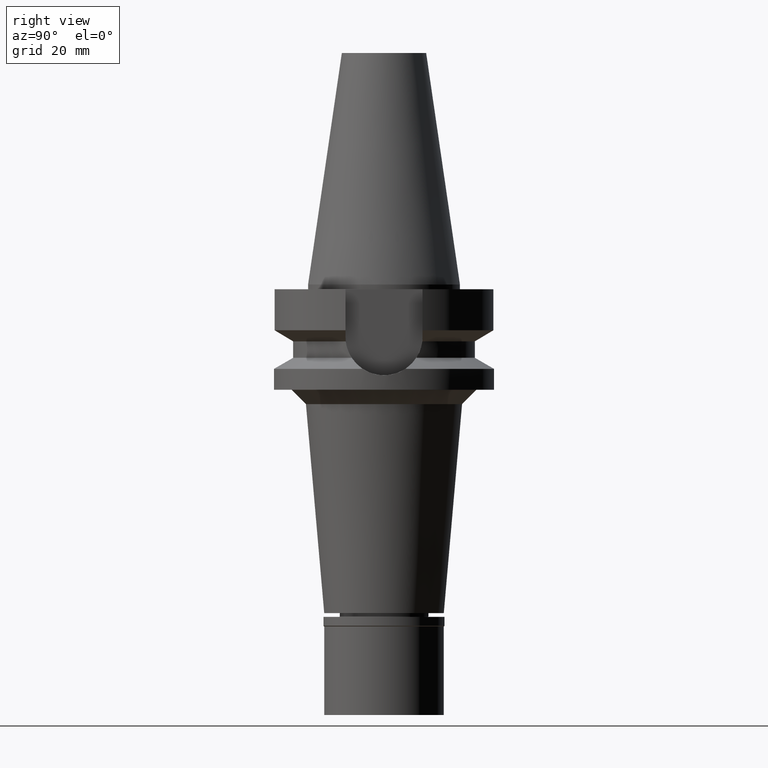
[diagram: clean part render]
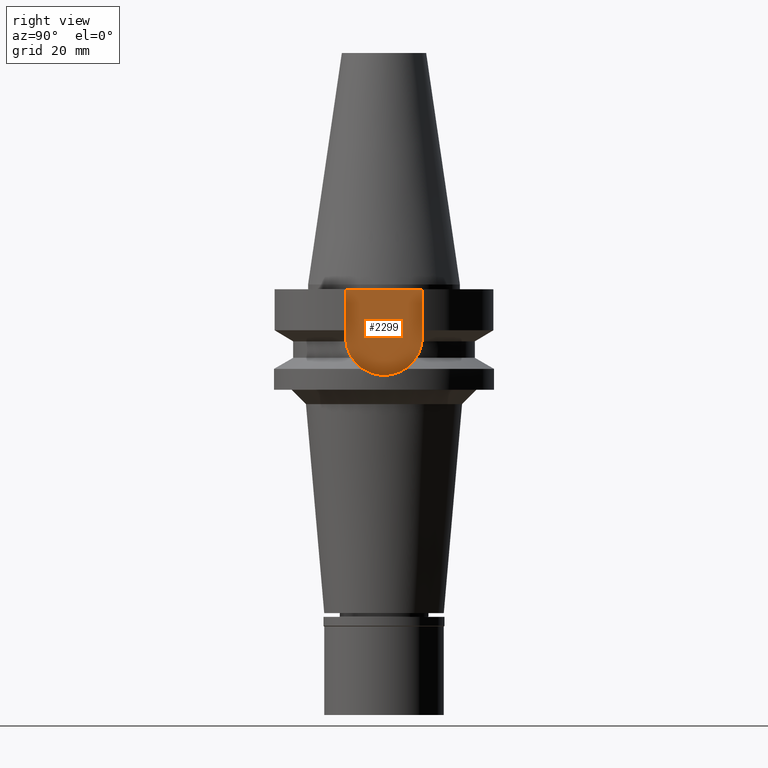
[diagram: same view with one face highlighted and labeled with its STEP entity id]
A machine part, right view. The second image highlights one B-rep face of the part: STEP entity #2299.
In plain terms, the highlighted planar face has unit normal (1, 0, 0).
Its self-contained STEP definition (entity closure, byte-faithful):
#47 = AXIS2_PLACEMENT_3D ( 'NONE', #2974, #646, #900 ) ;
#63 = LINE ( 'NONE', #1430, #1229 ) ;
#89 = VERTEX_POINT ( 'NONE', #2755 ) ;
#106 = EDGE_CURVE ( 'NONE', #199, #1122, #179, .T. ) ;
#179 = LINE ( 'NONE', #2321, #2166 ) ;
#199 = VERTEX_POINT ( 'NONE', #768 ) ;
#209 = DIRECTION ( 'NONE',  ( 0.0000000000000000000, 0.0000000000000000000, 1.000000000000000000 ) ) ;
#370 = EDGE_CURVE ( 'NONE', #2447, #1122, #63, .T. ) ;
#483 = VECTOR ( 'NONE', #1115, 1000.000000000000000 ) ;
#577 = ORIENTED_EDGE ( 'NONE', *, *, #370, .T. ) ;
#606 = LINE ( 'NONE', #2933, #483 ) ;
#644 = AXIS2_PLACEMENT_3D ( 'NONE', #1545, #1482, #1519 ) ;
#646 = DIRECTION ( 'NONE',  ( -1.000000000000000000, 0.0000000000000000000, 0.0000000000000000000 ) ) ;
#742 = CIRCLE ( 'NONE', #47, 8.050000000000000711 ) ;
#768 = CARTESIAN_POINT ( 'NONE',  ( 16.29999999999999716, -8.050000000000000711, -10.94999999999999929 ) ) ;
#772 = DIRECTION ( 'NONE',  ( 0.0000000000000000000, -1.000000000000000000, 0.0000000000000000000 ) ) ;
#831 = CARTESIAN_POINT ( 'NONE',  ( 16.29999999999999716, -8.050000000000000711, -1.000000000000000000 ) ) ;
#851 = ORIENTED_EDGE ( 'NONE', *, *, #1340, .F. ) ;
#900 = DIRECTION ( 'NONE',  ( 0.0000000000000000000, 1.000000000000000000, 0.0000000000000000000 ) ) ;
#1115 = DIRECTION ( 'NONE',  ( 0.0000000000000000000, 0.0000000000000000000, -1.000000000000000000 ) ) ;
#1122 = VERTEX_POINT ( 'NONE', #831 ) ;
#1229 = VECTOR ( 'NONE', #772, 1000.000000000000000 ) ;
#1240 = FACE_OUTER_BOUND ( 'NONE', #1738, .T. ) ;
#1340 = EDGE_CURVE ( 'NONE', #2447, #89, #606, .T. ) ;
#1419 = ORIENTED_EDGE ( 'NONE', *, *, #106, .F. ) ;
#1430 = CARTESIAN_POINT ( 'NONE',  ( 16.29999999999999716, 8.050000000000000711, -1.000000000000000000 ) ) ;
#1482 = DIRECTION ( 'NONE',  ( 1.000000000000000000, 0.0000000000000000000, 0.0000000000000000000 ) ) ;
#1487 = ORIENTED_EDGE ( 'NONE', *, *, #1736, .F. ) ;
#1519 = DIRECTION ( 'NONE',  ( 0.0000000000000000000, 1.000000000000000000, 0.0000000000000000000 ) ) ;
#1545 = CARTESIAN_POINT ( 'NONE',  ( 16.29999999999999716, 0.0000000000000000000, 0.0000000000000000000 ) ) ;
#1736 = EDGE_CURVE ( 'NONE', #89, #199, #742, .T. ) ;
#1738 = EDGE_LOOP ( 'NONE', ( #1419, #1487, #851, #577 ) ) ;
#2029 = CARTESIAN_POINT ( 'NONE',  ( 16.29999999999999716, 8.050000000000000711, -1.000000000000000000 ) ) ;
#2166 = VECTOR ( 'NONE', #209, 1000.000000000000000 ) ;
#2299 = ADVANCED_FACE ( 'NONE', ( #1240 ), #2468, .T. ) ;
#2321 = CARTESIAN_POINT ( 'NONE',  ( 16.29999999999999716, -8.050000000000000711, -10.94999999999999929 ) ) ;
#2447 = VERTEX_POINT ( 'NONE', #2029 ) ;
#2468 = PLANE ( 'NONE',  #644 ) ;
#2755 = CARTESIAN_POINT ( 'NONE',  ( 16.29999999999999716, 8.050000000000000711, -10.94999999999999929 ) ) ;
#2933 = CARTESIAN_POINT ( 'NONE',  ( 16.29999999999999716, 8.050000000000000711, -1.000000000000000000 ) ) ;
#2974 = CARTESIAN_POINT ( 'NONE',  ( 16.29999999999999716, 0.0000000000000000000, -10.94999999999999929 ) ) ;